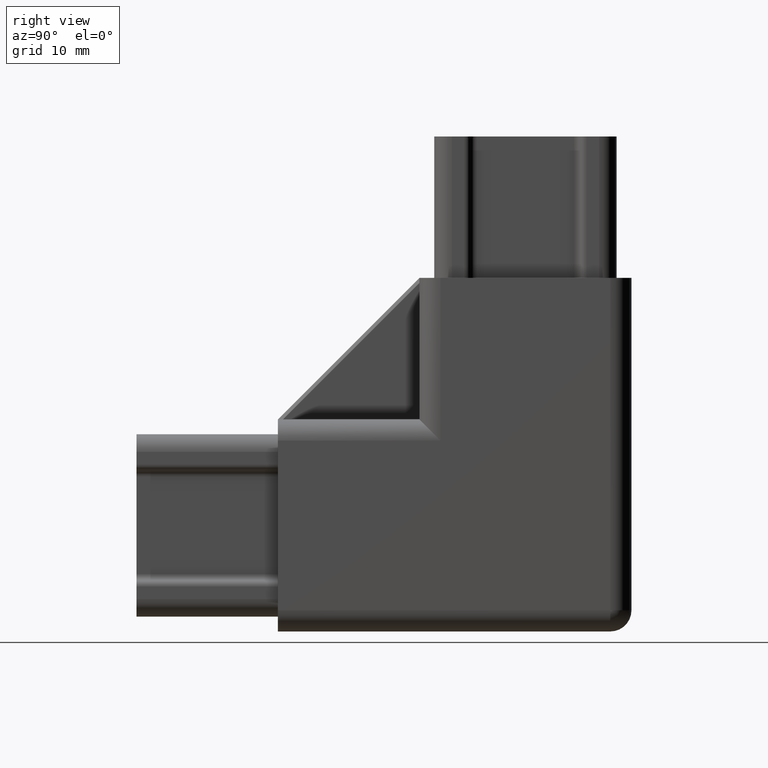
[diagram: clean part render]
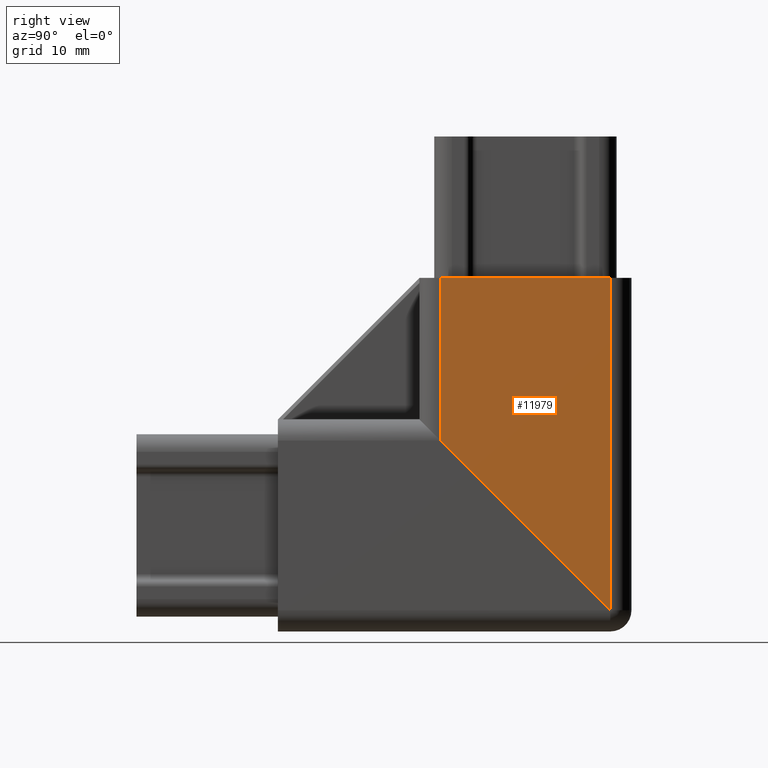
[diagram: same view with one face highlighted and labeled with its STEP entity id]
A machine part, right view. The second image highlights one B-rep face of the part: STEP entity #11979.
In plain terms, the highlighted planar face has unit normal (1, 0, 0).
Its self-contained STEP definition (entity closure, byte-faithful):
#11 = DIRECTION ( 'NONE',  ( 0.0000000000000000000, 0.0000000000000000000, -1.000000000000000000 ) ) ;
#358 = VECTOR ( 'NONE', #9074, 1000.000000000000000 ) ;
#951 = VERTEX_POINT ( 'NONE', #16104 ) ;
#2040 = EDGE_CURVE ( 'NONE', #2242, #3203, #8841, .T. ) ;
#2242 = VERTEX_POINT ( 'NONE', #14082 ) ;
#3203 = VERTEX_POINT ( 'NONE', #6225 ) ;
#3649 = LINE ( 'NONE', #8408, #7123 ) ;
#4474 = EDGE_CURVE ( 'NONE', #13478, #2242, #8308, .T. ) ;
#4800 = EDGE_LOOP ( 'NONE', ( #11797, #4869, #15706, #5558 ) ) ;
#4869 = ORIENTED_EDGE ( 'NONE', *, *, #2040, .T. ) ;
#5005 = CARTESIAN_POINT ( 'NONE',  ( 30.00000000000000000, 25.00189468690981100, 25.00189468690980700 ) ) ;
#5199 = DIRECTION ( 'NONE',  ( 0.0000000000000000000, -1.387778780781445700E-016, 1.000000000000000000 ) ) ;
#5257 = CARTESIAN_POINT ( 'NONE',  ( 30.00000000000000000, 0.0000000000000000000, 0.0000000000000000000 ) ) ;
#5259 = CARTESIAN_POINT ( 'NONE',  ( 30.00000000000000000, 46.99999999999999300, 50.00000000000000000 ) ) ;
#5558 = ORIENTED_EDGE ( 'NONE', *, *, #12843, .T. ) ;
#6225 = CARTESIAN_POINT ( 'NONE',  ( 30.00000000000000000, 47.00000000000000000, 3.003789373819613800 ) ) ;
#7123 = VECTOR ( 'NONE', #10920, 1000.000000000000000 ) ;
#7490 = VECTOR ( 'NONE', #5199, 1000.000000000000000 ) ;
#8308 = LINE ( 'NONE', #9021, #358 ) ;
#8408 = CARTESIAN_POINT ( 'NONE',  ( 30.00000000000000000, 49.99999999999999300, 50.00000000000000000 ) ) ;
#8841 = LINE ( 'NONE', #5005, #13302 ) ;
#9021 = CARTESIAN_POINT ( 'NONE',  ( 30.00000000000000000, 23.00000000000000700, 3.989863994746658700E-015 ) ) ;
#9074 = DIRECTION ( 'NONE',  ( -0.0000000000000000000, 1.734723475976807600E-016, -1.000000000000000000 ) ) ;
#10388 = PLANE ( 'NONE',  #10823 ) ;
#10823 = AXIS2_PLACEMENT_3D ( 'NONE', #5257, #15561, #11 ) ;
#10920 = DIRECTION ( 'NONE',  ( 0.0000000000000000000, -1.000000000000000000, -2.312964634635743000E-016 ) ) ;
#11797 = ORIENTED_EDGE ( 'NONE', *, *, #4474, .T. ) ;
#11979 = ADVANCED_FACE ( 'NONE', ( #15027 ), #10388, .T. ) ;
#12706 = DIRECTION ( 'NONE',  ( 0.0000000000000000000, 0.7071067811865474600, -0.7071067811865475700 ) ) ;
#12843 = EDGE_CURVE ( 'NONE', #951, #13478, #3649, .T. ) ;
#13302 = VECTOR ( 'NONE', #12706, 1000.000000000000000 ) ;
#13478 = VERTEX_POINT ( 'NONE', #16230 ) ;
#14082 = CARTESIAN_POINT ( 'NONE',  ( 30.00000000000000000, 23.00000000000000400, 27.00378937381961500 ) ) ;
#14588 = LINE ( 'NONE', #5259, #7490 ) ;
#15027 = FACE_OUTER_BOUND ( 'NONE', #4800, .T. ) ;
#15432 = EDGE_CURVE ( 'NONE', #3203, #951, #14588, .T. ) ;
#15561 = DIRECTION ( 'NONE',  ( 1.000000000000000000, 0.0000000000000000000, 0.0000000000000000000 ) ) ;
#15706 = ORIENTED_EDGE ( 'NONE', *, *, #15432, .T. ) ;
#16104 = CARTESIAN_POINT ( 'NONE',  ( 30.00000000000000000, 46.99999999999999300, 50.00000000000000000 ) ) ;
#16230 = CARTESIAN_POINT ( 'NONE',  ( 30.00000000000000000, 22.99999999999999600, 49.99999999999999300 ) ) ;